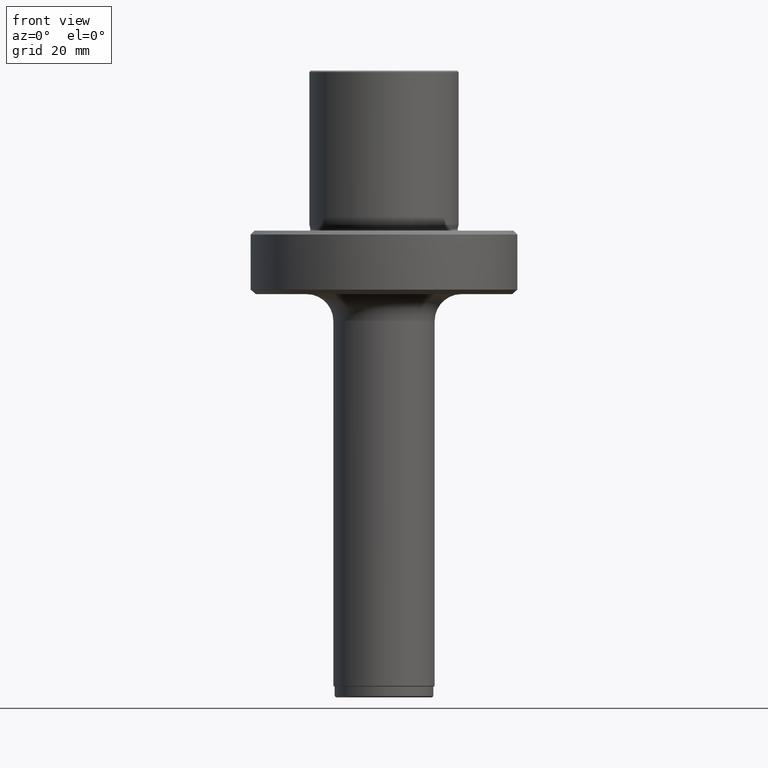
[diagram: clean part render]
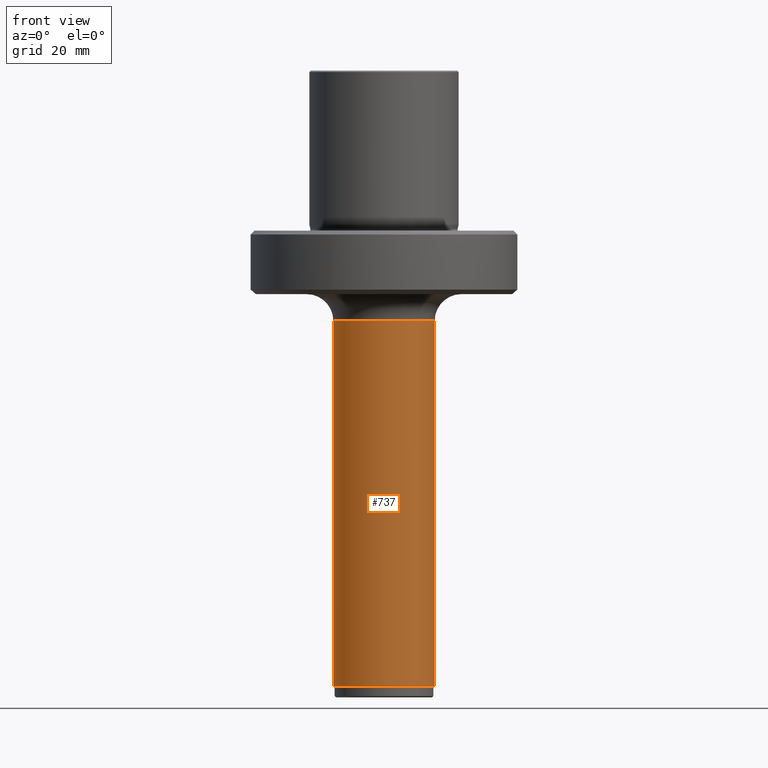
[diagram: same view with one face highlighted and labeled with its STEP entity id]
A machine part, front view. The second image highlights one B-rep face of the part: STEP entity #737.
In plain terms, the highlighted cylindrical surface (partial cylindrical patch) has radius 9.5 mm, axis along (-0, -0, 1).
Its self-contained STEP definition (entity closure, byte-faithful):
#697=EDGE_CURVE('NONE',#757,#1247,#1736,.T.);
#737=ADVANCED_FACE('NONE',(#1780),#1781,.T.);
#757=VERTEX_POINT('NONE',#1803);
#803=VERTEX_POINT('NONE',#1853);
#885=EDGE_CURVE('NONE',#1223,#803,#1942,.T.);
#1223=VERTEX_POINT('NONE',#2324);
#1247=VERTEX_POINT('NONE',#2352);
#1321=EDGE_CURVE('NONE',#757,#1223,#2432,.T.);
#1325=EDGE_CURVE('NONE',#1247,#803,#2436,.T.);
#1736=LINE('',#2997,#2998);
#1780=FACE_OUTER_BOUND('',#3124,.T.);
#1781=CYLINDRICAL_SURFACE('',#3125,9.5);
#1803=CARTESIAN_POINT('',(9.5,0.0,-85.3556624327026));
#1853=CARTESIAN_POINT('',(-9.5,1.16337603613126E-015,-16.9));
#1942=LINE('',#3382,#3383);
#2324=CARTESIAN_POINT('',(-9.5,1.16337603613126E-015,-85.3556624327026));
#2352=CARTESIAN_POINT('',(9.5,0.0,-16.9));
#2432=CIRCLE('',#4098,9.5);
#2436=CIRCLE('',#4111,9.5);
#2997=CARTESIAN_POINT('',(9.5,0.0,-87.5));
#2998=VECTOR('',#4716,1000.0);
#3124=EDGE_LOOP('',(#4772,#4773,#4774,#4775));
#3125=AXIS2_PLACEMENT_3D('',#4776,#4777,#4778);
#3382=CARTESIAN_POINT('',(-9.5,1.16337603613126E-015,-87.5));
#3383=VECTOR('',#4934,1000.0);
#4098=AXIS2_PLACEMENT_3D('',#5568,#5569,#5570);
#4111=AXIS2_PLACEMENT_3D('',#5571,#5572,#5573);
#4716=DIRECTION('',(0.0,0.0,1.0));
#4772=ORIENTED_EDGE('',*,*,#885,.F.);
#4773=ORIENTED_EDGE('',*,*,#1321,.F.);
#4774=ORIENTED_EDGE('',*,*,#697,.T.);
#4775=ORIENTED_EDGE('',*,*,#1325,.T.);
#4776=CARTESIAN_POINT('',(0.0,0.0,-87.5));
#4777=DIRECTION('',(-0.0,-0.0,1.0));
#4778=DIRECTION('',(1.0,0.0,0.0));
#4934=DIRECTION('',(0.0,0.0,1.0));
#5568=CARTESIAN_POINT('',(0.0,0.0,-85.3556624327026));
#5569=DIRECTION('',(0.0,0.0,-1.0));
#5570=DIRECTION('',(1.0,0.0,0.0));
#5571=CARTESIAN_POINT('',(0.0,0.0,-16.9));
#5572=DIRECTION('',(0.0,0.0,-1.0));
#5573=DIRECTION('',(1.0,0.0,0.0));